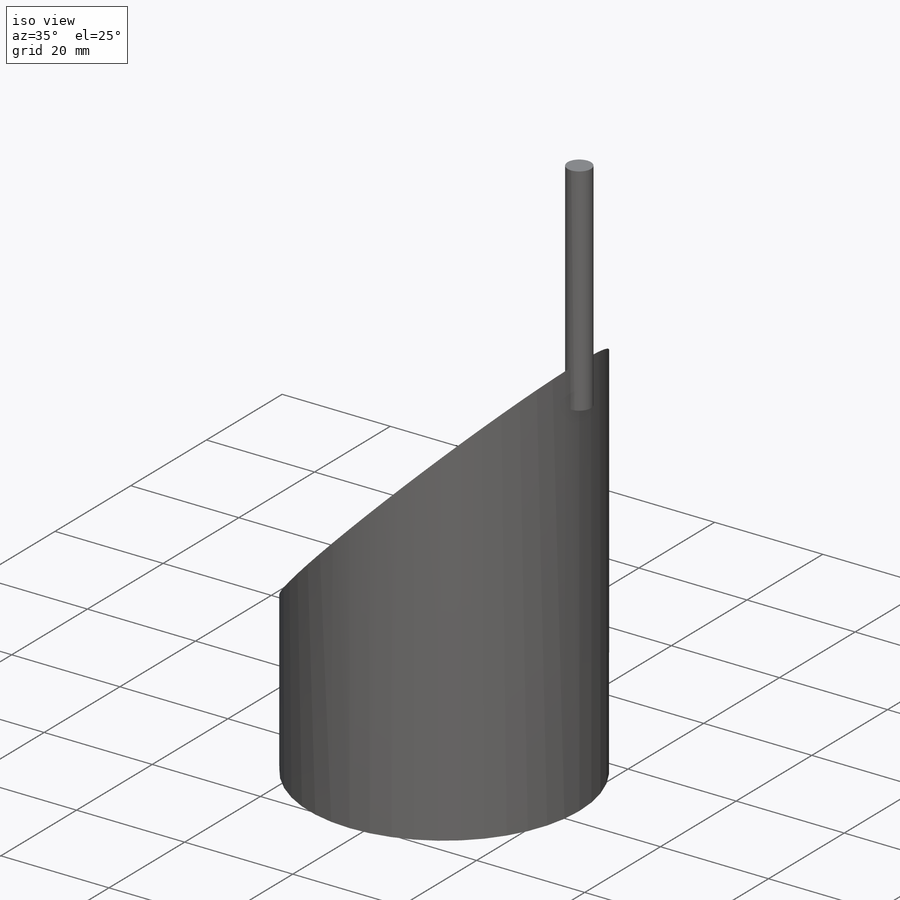
[diagram: iso view]
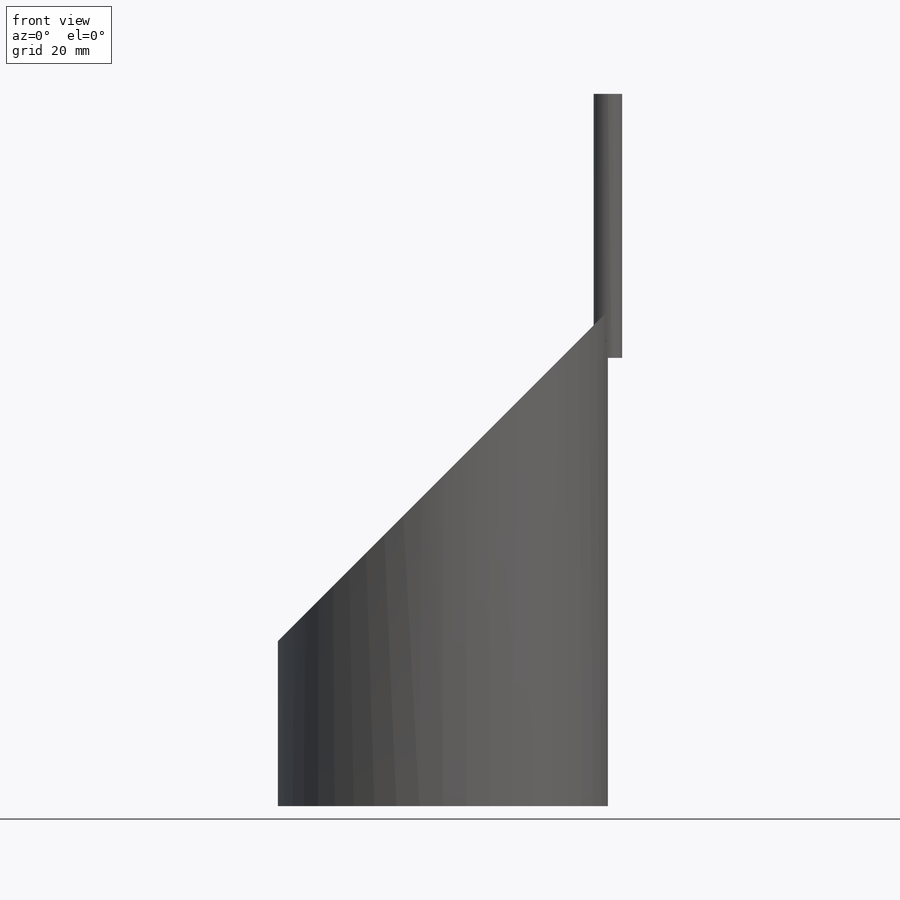
[diagram: front view]
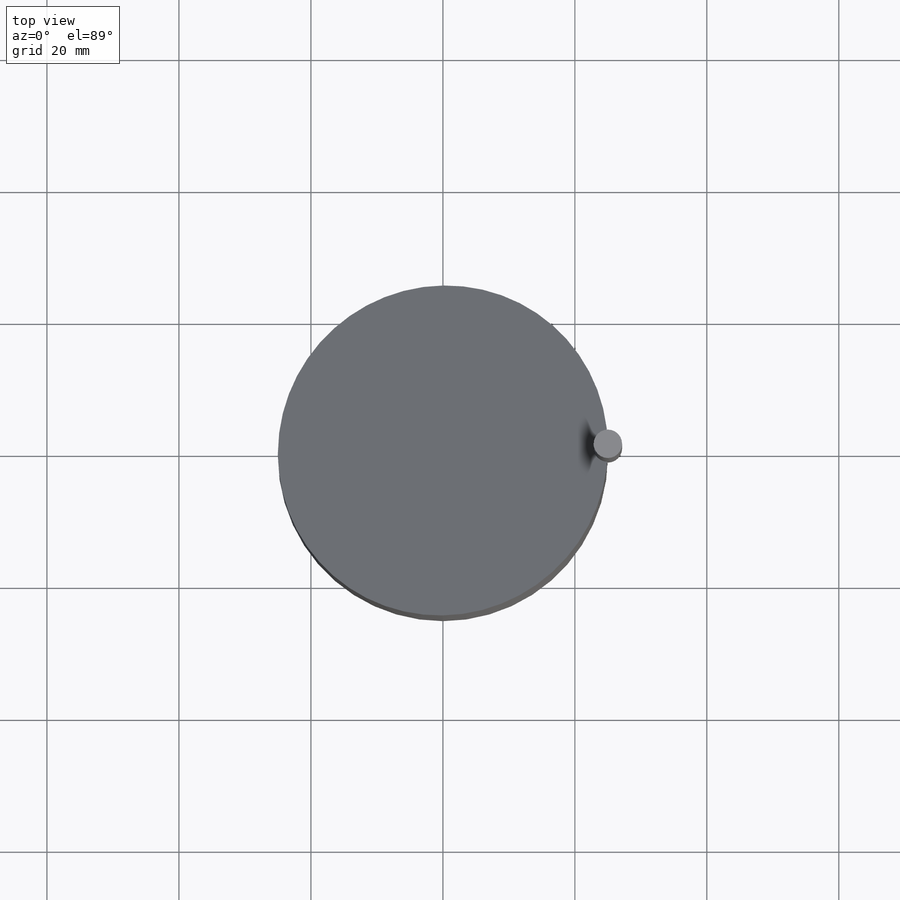
[diagram: top view]
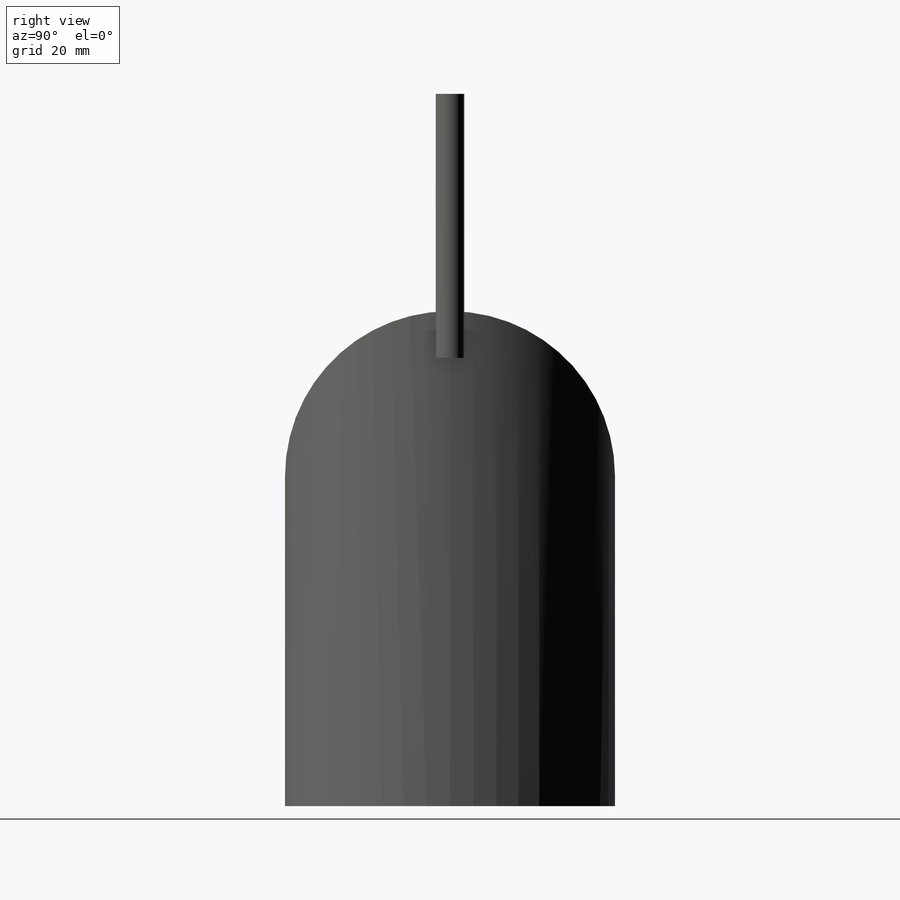
[diagram: right view]
SOLIDWORKS PART (.sldprt)
format: sldprt  version: not decoded by parser v0  size: 189,440 bytes
history: native  units: mm
features: plane x6, sketch x5, extrude x5, material x1 (+9 scaffold rows collapsed)
feature tree (26):
  scaffold x9  (default folders/planes/origin — collapsed)
  material  "Material <nicht festgelegt>"
  plane  "Ebene vorne"
  plane  "Ebene oben"
  plane  "Ebene rechts"
  plane  "Ebene1"  Offset=50mm
  plane  "Ebene2"
  sketch  "Skizze1"  dims[D1=50.0mm]
  extrude  "Aufsatz-Linear austragen1"  [1 undecoded]
  sketch  "Achse2"
  plane  "Ebene3"  Offset=5mm
  extrude  "Fraeserweg"  [1 undecoded]
  sketch  "3D-Skizze1"  dims[c1.D1=5.0mm c2.D1=5.0mm c2.D2=5.0mm]
  extrude  "Fraeserpos 1"  Depth=40mm
  sketch  "3D-Skizze2"  dims[c1.D1=5.0mm c2.D1=5.0mm]
  extrude  "Fraeserpos 2"  Depth=40mm
  sketch  "3D-Skizze3"  dims[c1.D1=~4.313199mm c2.D1=~4.313199mm]
  extrude  "Faeserpos 3"  Depth=40mm
decode coverage: 7 of 10 modeling features carry decoded parameters
note: ~ marks probable driven/reference dimensions
note: 2 parameter values undecoded
note: suppression state not decoded; provenance and decode notes live in map.json
